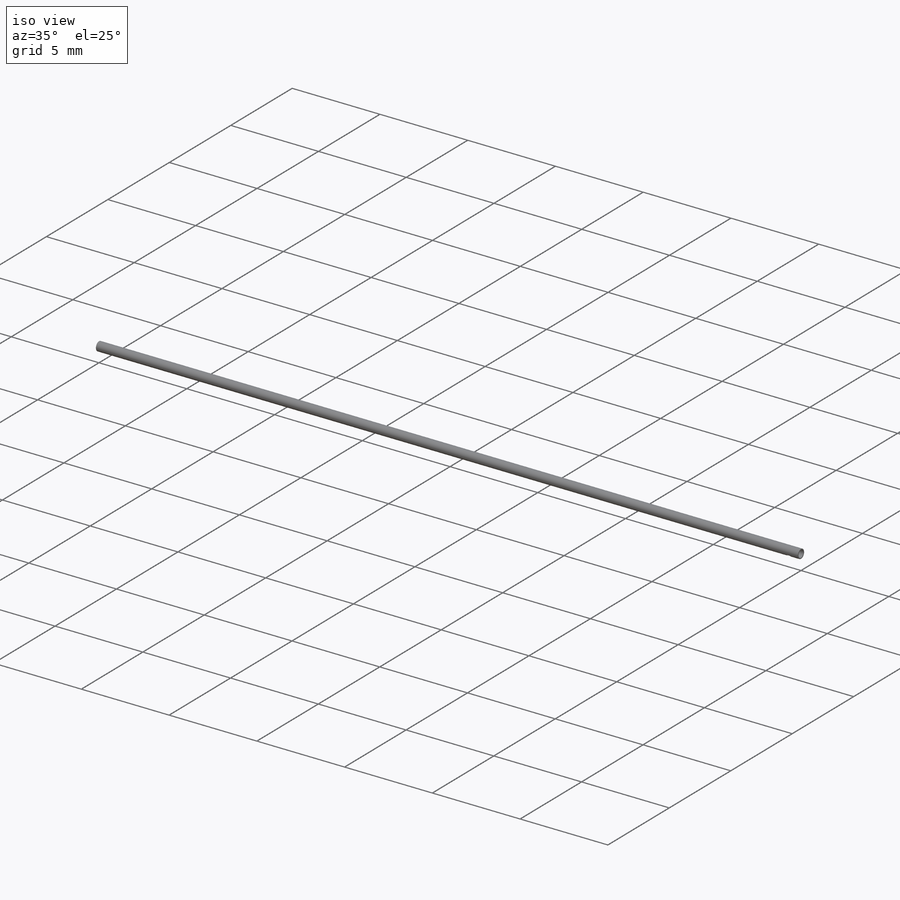
[diagram: iso view]
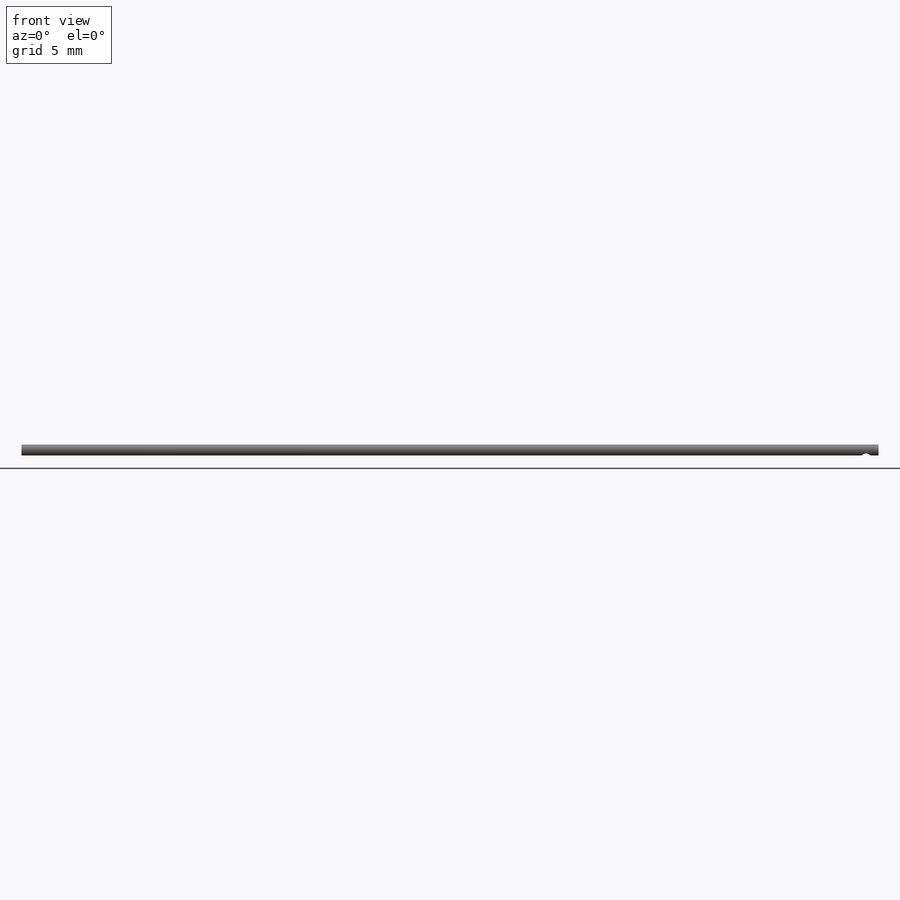
[diagram: front view]
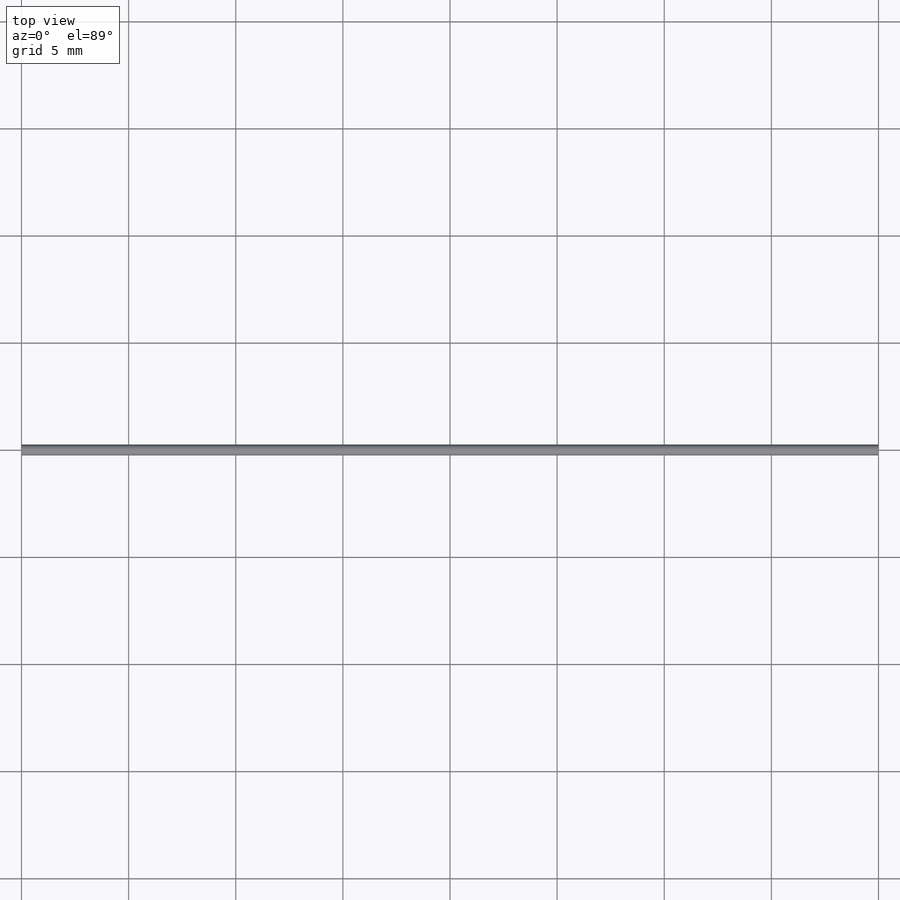
[diagram: top view]
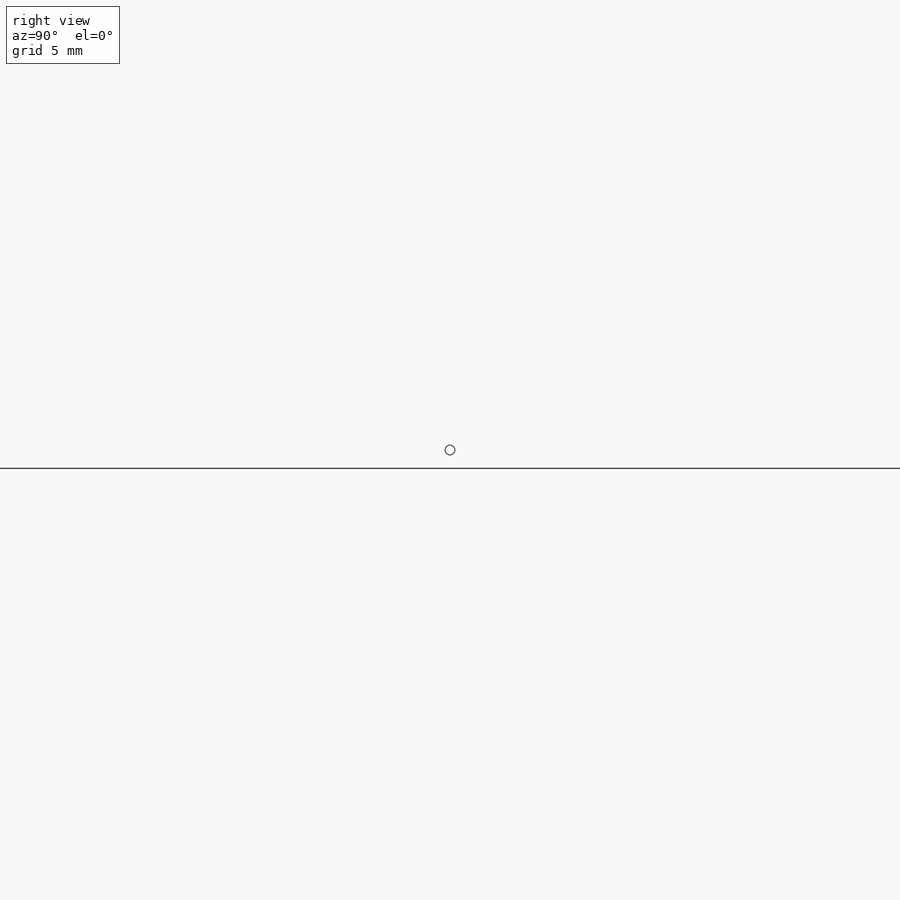
[diagram: right view]
SOLIDWORKS PART (.sldprt)
format: sldprt  version: not decoded by parser v0  size: 168,960 bytes
history: native  units: mm
features: sketch x4, material x1, extrude x1, sweep x1, cut_extrude x1 (+13 scaffold rows collapsed)
feature tree (21):
  scaffold x13  (default folders/planes/origin — collapsed)
  material  "Material <not specified>"
  sketch  "Sketch1"  dims[D1=0.4064mm D2=0.508mm]
  extrude  "Boss-Extrude1"  Depth=40mm
  sketch  "Sketch3"  dims[D1=~0.020132mm D2=~0.810307mm]
  sketch  "Sketch4"
  sweep  "Sweep1"
  sketch  "Sketch5"  dims[D1=0.4mm]
  cut_extrude  "Cut-Extrude1"  Depth=10mm
decode coverage: 5 of 7 modeling features carry decoded parameters
note: ~ marks probable driven/reference dimensions
note: suppression state not decoded; provenance and decode notes live in map.json
